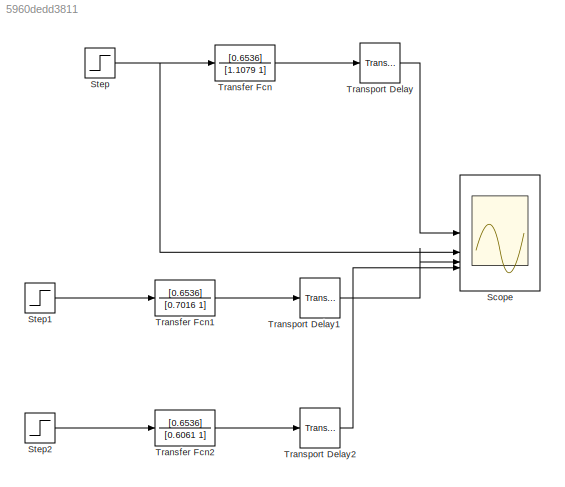
MODEL slx_5960dedd3811
KIND model
CONFIG AbsTol = auto
CONFIG EnableMultiTasking = off
CONFIG FixedStep = auto
CONFIG MaxStep = auto
CONFIG MinStep = auto
CONFIG RelTol = 1e-3
CONFIG SampleTimeConstraint = Unconstrained
CONFIG SolverName = VariableStepAuto
CONFIG StartTime = 0.0
CONFIG StopTime = 10.0
BLOCK [Scope] Scope
  Floating = off
  NumInputPorts = 4
  ScopeSpecificationString = Simulink.scopes.TimeScopeBlockCfg('CurrentConfiguration', extmgr.ConfigurationSet(extmgr.Configuration('Core','General UI',true),extmgr.Configuration('Core','Source UI',true),extmgr.Configuration('Sources','WiredSimulink',true),extmgr.Configuration('Visuals','Time Domain',true,'SerializedDisplays',{struct('MinYLimReal','-0.1875','MaxYLimReal','1.6875','YLabelReal','','MinYLimMag','0.00000','MaxYLi...<+1490ch>
BLOCK [Step] Step
  After = 1.5
  SampleTime = 0
  Time = 0.2020202
BLOCK [Step] Step1
  After = 1.5
  SampleTime = 0
  Time = 0.2020202
BLOCK [Step] Step2
  After = 1.5
  SampleTime = 0
  Time = 0.2020202
BLOCK [TransferFcn] Transfer Fcn
  Denominator = [1.1079 1]
  Numerator = [0.6536]
BLOCK [TransferFcn] Transfer Fcn1
  Denominator = [0.7016 1]
  Numerator = [0.6536]
BLOCK [TransferFcn] Transfer Fcn2
  Denominator = [0.6061 1]
  Numerator = [0.6536]
BLOCK [TransportDelay] Transport Delay
  DelayTime = 0.2784
BLOCK [TransportDelay] Transport Delay1
  DelayTime = 0.2784
BLOCK [TransportDelay] Transport Delay2
  DelayTime = 0.4040
LINE Step1:1 -> Transfer Fcn1:1
LINE Step2:1 -> Transfer Fcn2:1
NET Step:1 -> Scope:2, Transfer Fcn:1
LINE Transfer Fcn1:1 -> Transport Delay1:1
LINE Transfer Fcn2:1 -> Transport Delay2:1
LINE Transfer Fcn:1 -> Transport Delay:1
LINE Transport Delay1:1 -> Scope:3
LINE Transport Delay2:1 -> Scope:4
LINE Transport Delay:1 -> Scope:1
note: NET lines group one-source signal fan-out (src -> all destinations, sorted); 1:1 wires keep LINE
